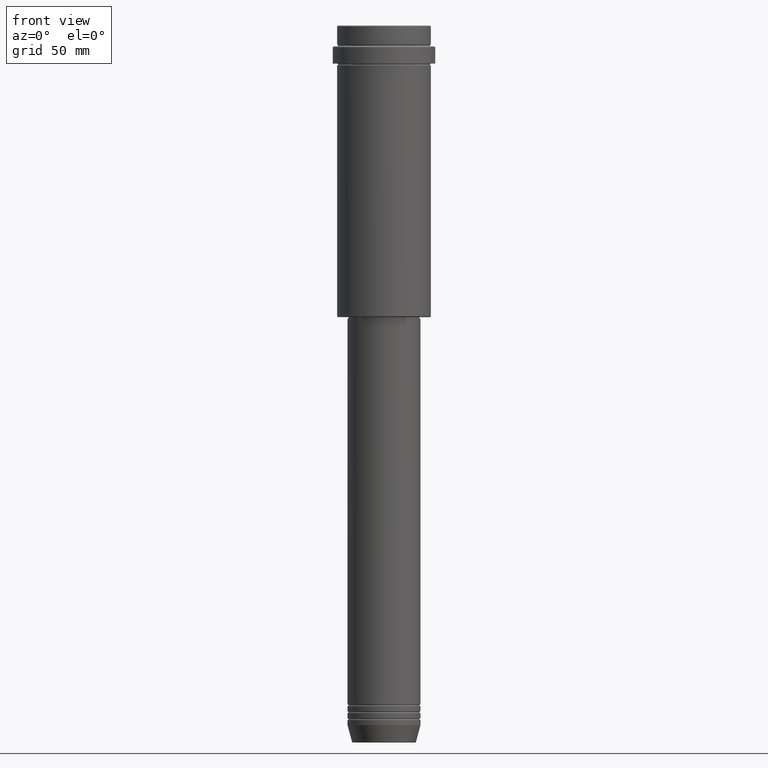
[diagram: clean part render]
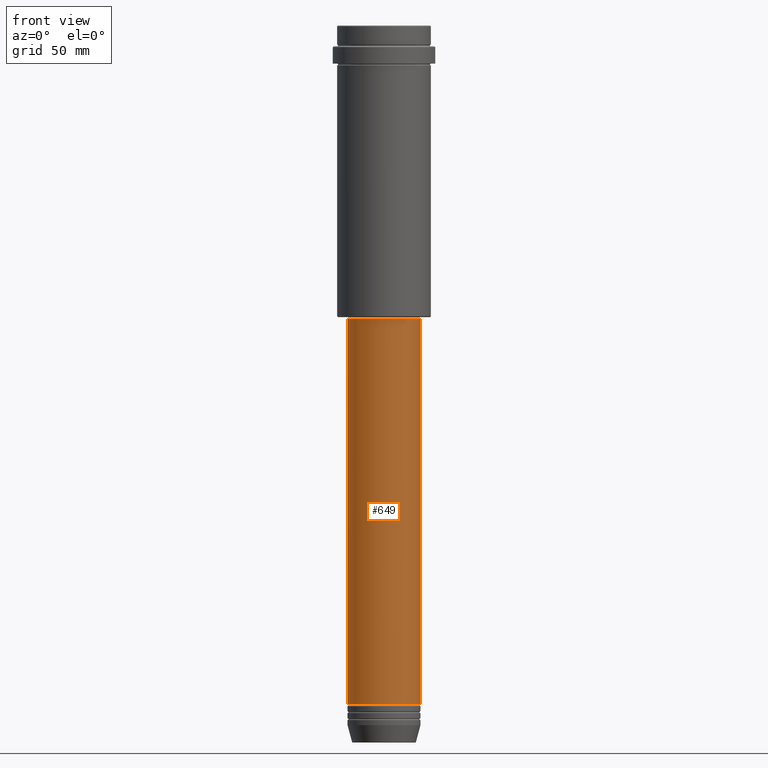
[diagram: same view with one face highlighted and labeled with its STEP entity id]
A machine part, front view. The second image highlights one B-rep face of the part: STEP entity #649.
In plain terms, the highlighted cylindrical surface (edge-blend (fillet) strip) has radius 21 mm, axis along (-0, -0, 1).
Its self-contained STEP definition (entity closure, byte-faithful):
#57 = ORIENTED_EDGE ( 'NONE', *, *, #1156, .F. ) ;
#131 = CIRCLE ( 'NONE', #615, 21.00000000000000000 ) ;
#211 = EDGE_CURVE ( 'NONE', #507, #922, #539, .T. ) ;
#229 = DIRECTION ( 'NONE',  ( 1.000000000000000000, 0.000000000000000000, 0.000000000000000000 ) ) ;
#265 = CARTESIAN_POINT ( 'NONE',  ( 21.00000000000000000, 0.000000000000000000, 0.000000000000000000 ) ) ;
#272 = DIRECTION ( 'NONE',  ( 1.000000000000000000, 0.000000000000000000, 0.000000000000000000 ) ) ;
#279 = ORIENTED_EDGE ( 'NONE', *, *, #896, .T. ) ;
#284 = DIRECTION ( 'NONE',  ( -0.000000000000000000, -0.000000000000000000, 1.000000000000000000 ) ) ;
#314 = AXIS2_PLACEMENT_3D ( 'NONE', #1305, #284, #1038 ) ;
#357 = VECTOR ( 'NONE', #1371, 1000.000000000000000 ) ;
#363 = CARTESIAN_POINT ( 'NONE',  ( -21.00000000000000000, 2.571758278209441661E-15, 0.000000000000000000 ) ) ;
#383 = CARTESIAN_POINT ( 'NONE',  ( 21.00000000000000000, 0.000000000000000000, -168.9999999999998863 ) ) ;
#463 = CARTESIAN_POINT ( 'NONE',  ( 0.000000000000000000, 0.000000000000000000, -390.9999999999998295 ) ) ;
#476 = VECTOR ( 'NONE', #1350, 1000.000000000000000 ) ;
#507 = VERTEX_POINT ( 'NONE', #892 ) ;
#536 = ORIENTED_EDGE ( 'NONE', *, *, #211, .F. ) ;
#539 = CIRCLE ( 'NONE', #893, 21.00000000000000000 ) ;
#578 = LINE ( 'NONE', #363, #476 ) ;
#602 = VERTEX_POINT ( 'NONE', #655 ) ;
#615 = AXIS2_PLACEMENT_3D ( 'NONE', #463, #1238, #272 ) ;
#649 = ADVANCED_FACE ( 'NONE', ( #946 ), #754, .T. ) ;
#655 = CARTESIAN_POINT ( 'NONE',  ( 21.00000000000000000, 0.000000000000000000, -390.9999999999998295 ) ) ;
#708 = LINE ( 'NONE', #265, #357 ) ;
#754 = CYLINDRICAL_SURFACE ( 'NONE', #314, 21.00000000000000000 ) ;
#878 = CARTESIAN_POINT ( 'NONE',  ( 0.000000000000000000, 0.000000000000000000, -168.9999999999998863 ) ) ;
#892 = CARTESIAN_POINT ( 'NONE',  ( -21.00000000000000000, 2.571758278209441661E-15, -168.9999999999998863 ) ) ;
#893 = AXIS2_PLACEMENT_3D ( 'NONE', #878, #1196, #229 ) ;
#896 = EDGE_CURVE ( 'NONE', #602, #922, #708, .T. ) ;
#914 = ORIENTED_EDGE ( 'NONE', *, *, #1252, .T. ) ;
#922 = VERTEX_POINT ( 'NONE', #383 ) ;
#946 = FACE_OUTER_BOUND ( 'NONE', #1250, .T. ) ;
#1038 = DIRECTION ( 'NONE',  ( 1.000000000000000000, 0.000000000000000000, 0.000000000000000000 ) ) ;
#1121 = VERTEX_POINT ( 'NONE', #1125 ) ;
#1125 = CARTESIAN_POINT ( 'NONE',  ( -21.00000000000000000, 2.571758278209441661E-15, -390.9999999999998295 ) ) ;
#1156 = EDGE_CURVE ( 'NONE', #1121, #507, #578, .T. ) ;
#1196 = DIRECTION ( 'NONE',  ( -0.000000000000000000, -0.000000000000000000, 1.000000000000000000 ) ) ;
#1238 = DIRECTION ( 'NONE',  ( -0.000000000000000000, -0.000000000000000000, 1.000000000000000000 ) ) ;
#1250 = EDGE_LOOP ( 'NONE', ( #57, #914, #279, #536 ) ) ;
#1252 = EDGE_CURVE ( 'NONE', #1121, #602, #131, .T. ) ;
#1305 = CARTESIAN_POINT ( 'NONE',  ( 0.000000000000000000, 0.000000000000000000, 0.000000000000000000 ) ) ;
#1350 = DIRECTION ( 'NONE',  ( -0.000000000000000000, -0.000000000000000000, 1.000000000000000000 ) ) ;
#1371 = DIRECTION ( 'NONE',  ( -0.000000000000000000, -0.000000000000000000, 1.000000000000000000 ) ) ;